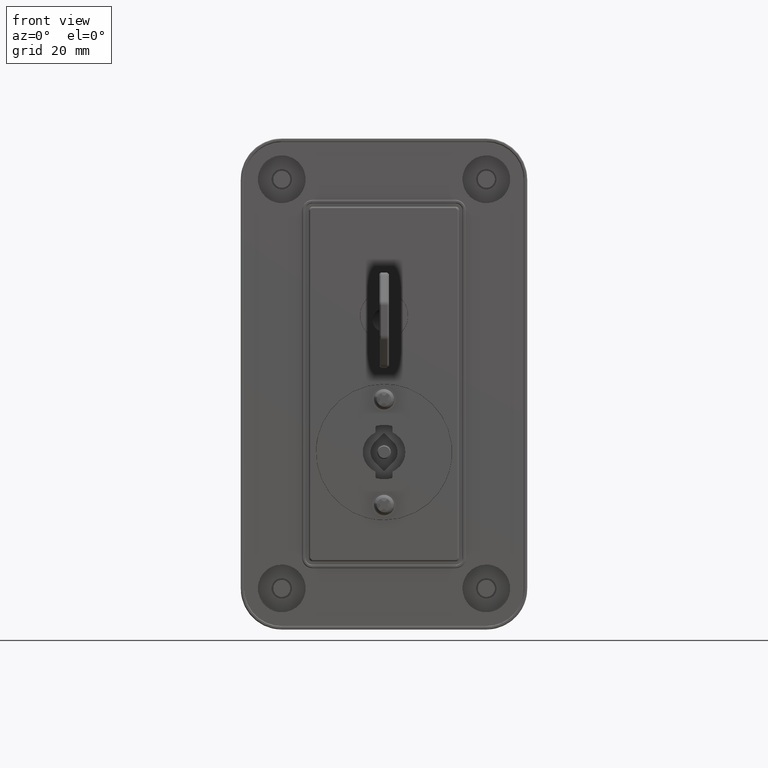
[diagram: clean part render]
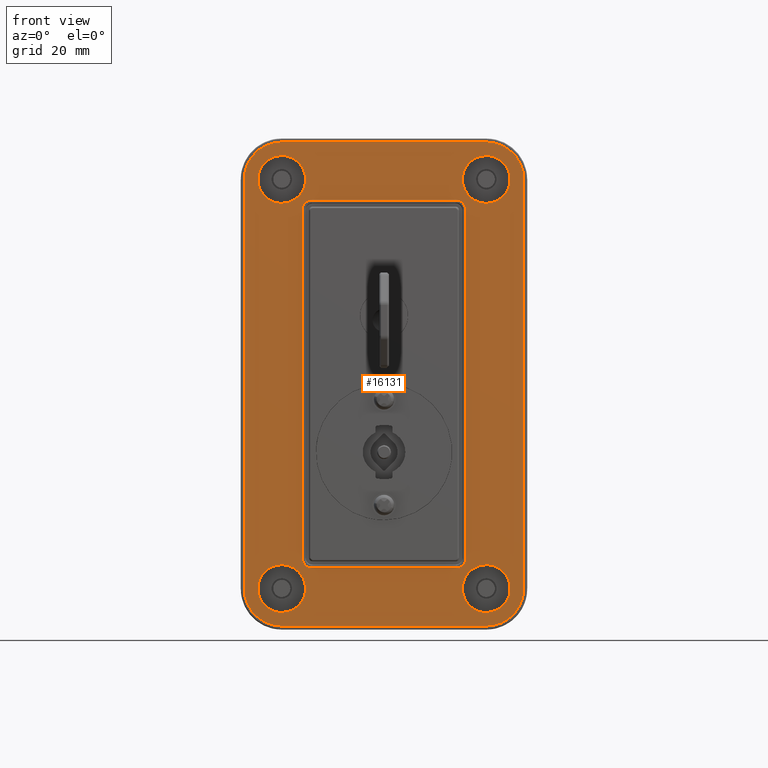
[diagram: same view with one face highlighted and labeled with its STEP entity id]
A machine part, front view. The second image highlights one B-rep face of the part: STEP entity #16131.
In plain terms, the highlighted face is a freeform B-spline surface patch.
Its self-contained STEP definition (entity closure, byte-faithful):
#10857=CARTESIAN_POINT('',(-28.149999996991848,23.048933315404579,79.173742690876992));
#10858=VERTEX_POINT('',#10857);
#10864=CARTESIAN_POINT('',(-28.149999996991848,29.999999999914301,86.999982333776700));
#10865=VERTEX_POINT('',#10864);
#10866=CARTESIAN_POINT('',(-28.149999996991848,23.048933315404582,79.173742690876992));
#10867=CARTESIAN_POINT('',(-28.149999996991848,22.999999999914298,79.585413495907716));
#10868=CARTESIAN_POINT('',(-28.149999996991848,22.999999999914301,79.999982333776700));
#10869=CARTESIAN_POINT('',(-28.149999996991852,22.999999999914298,86.999982333776700));
#10870=CARTESIAN_POINT('',(-28.149999996991848,29.999999999914301,86.999982333776700));
#10878=(BOUNDED_CURVE()B_SPLINE_CURVE(2,(#10866,#10867,#10868,#10869,#10870),.UNSPECIFIED.,.F.,.U.)B_SPLINE_CURVE_WITH_KNOTS((3,2,3),(0.229562473500939,0.250000000000000,0.500000000000000),.UNSPECIFIED.)CURVE()GEOMETRIC_REPRESENTATION_ITEM()RATIONAL_B_SPLINE_CURVE((0.956026754159064,0.976055948316420,1.0,0.707106781186547,1.0))REPRESENTATION_ITEM(''));
#10879=EDGE_CURVE('',#10858,#10865,#10878,.T.);
#10881=CARTESIAN_POINT('',(-28.149999996991848,36.986943588840191,80.427322110965108));
#10882=VERTEX_POINT('',#10881);
#10883=CARTESIAN_POINT('',(-28.149999996991848,29.999999999914301,86.999982333776700));
#10884=CARTESIAN_POINT('',(-28.149999996991845,36.584942467414905,86.999982333776700));
#10885=CARTESIAN_POINT('',(-28.149999996991856,36.986943588840191,80.427322110965108));
#10893=(BOUNDED_CURVE()B_SPLINE_CURVE(2,(#10883,#10884,#10885),.UNSPECIFIED.,.F.,.U.)B_SPLINE_CURVE_WITH_KNOTS((3,3),(0.500000000000000,0.739332962220018),.UNSPECIFIED.)CURVE()GEOMETRIC_REPRESENTATION_ITEM()RATIONAL_B_SPLINE_CURVE((1.0,0.719603993308882,0.976072041626158))REPRESENTATION_ITEM(''));
#10894=EDGE_CURVE('',#10865,#10882,#10893,.T.);
#10968=CARTESIAN_POINT('',(-28.149999996991848,29.999999999914301,72.999982333776686));
#10969=VERTEX_POINT('',#10968);
#10970=CARTESIAN_POINT('',(-28.149999996991852,36.986943588840191,80.427322110965108));
#10971=CARTESIAN_POINT('',(-28.149999996991856,36.999999999914301,80.213851677312476));
#10972=CARTESIAN_POINT('',(-28.149999996991848,36.999999999914301,79.999982333776700));
#10973=CARTESIAN_POINT('',(-28.149999996991852,36.999999999914309,72.999982333776686));
#10974=CARTESIAN_POINT('',(-28.149999996991848,29.999999999914301,72.999982333776686));
#10982=(BOUNDED_CURVE()B_SPLINE_CURVE(2,(#10970,#10971,#10972,#10973,#10974),.UNSPECIFIED.,.F.,.U.)B_SPLINE_CURVE_WITH_KNOTS((3,2,3),(0.739332962220019,0.750000000000000,1.0),.UNSPECIFIED.)CURVE()GEOMETRIC_REPRESENTATION_ITEM()RATIONAL_B_SPLINE_CURVE((0.976072041626159,0.987502787877666,1.0,0.707106781186547,1.0))REPRESENTATION_ITEM(''));
#10983=EDGE_CURVE('',#10882,#10969,#10982,.T.);
#10985=CARTESIAN_POINT('',(-28.149999996991848,29.999999999914301,72.999982333776686));
#10986=CARTESIAN_POINT('',(-28.149999996991852,23.782778318799494,72.999982333776700));
#10987=CARTESIAN_POINT('',(-28.149999996991848,23.048933315404582,79.173742690876992));
#10995=(BOUNDED_CURVE()B_SPLINE_CURVE(2,(#10985,#10986,#10987),.UNSPECIFIED.,.F.,.U.)B_SPLINE_CURVE_WITH_KNOTS((3,3),(0.0,0.229562473500939),.UNSPECIFIED.)CURVE()GEOMETRIC_REPRESENTATION_ITEM()RATIONAL_B_SPLINE_CURVE((1.0,0.731050832870128,0.956026754159064))REPRESENTATION_ITEM(''));
#10996=EDGE_CURVE('',#10969,#10858,#10995,.T.);
#11043=CARTESIAN_POINT('',(-28.149999996991848,-36.951066684332467,79.173742690894500));
#11044=VERTEX_POINT('',#11043);
#11050=CARTESIAN_POINT('',(-28.149999996991848,-29.999999999822752,86.999982333794208));
#11051=VERTEX_POINT('',#11050);
#11052=CARTESIAN_POINT('',(-28.149999996991856,-36.951066684332474,79.173742690894500));
#11053=CARTESIAN_POINT('',(-28.149999996991848,-36.999999999822755,79.585413495925238));
#11054=CARTESIAN_POINT('',(-28.149999996991848,-36.999999999822748,79.999982333794193));
#11055=CARTESIAN_POINT('',(-28.149999996991852,-36.999999999822748,86.999982333794222));
#11056=CARTESIAN_POINT('',(-28.149999996991848,-29.999999999822752,86.999982333794208));
#11064=(BOUNDED_CURVE()B_SPLINE_CURVE(2,(#11052,#11053,#11054,#11055,#11056),.UNSPECIFIED.,.F.,.U.)B_SPLINE_CURVE_WITH_KNOTS((3,2,3),(0.229562473500940,0.250000000000000,0.500000000000000),.UNSPECIFIED.)CURVE()GEOMETRIC_REPRESENTATION_ITEM()RATIONAL_B_SPLINE_CURVE((0.956026754159064,0.976055948316420,1.0,0.707106781186547,1.0))REPRESENTATION_ITEM(''));
#11065=EDGE_CURVE('',#11044,#11051,#11064,.T.);
#11067=CARTESIAN_POINT('',(-28.149999996991848,-23.013056410896869,80.427322110982601));
#11068=VERTEX_POINT('',#11067);
#11069=CARTESIAN_POINT('',(-28.149999996991848,-29.999999999822752,86.999982333794208));
#11070=CARTESIAN_POINT('',(-28.149999996991845,-23.415057532322141,86.999982333794222));
#11071=CARTESIAN_POINT('',(-28.149999996991856,-23.013056410896866,80.427322110982601));
#11079=(BOUNDED_CURVE()B_SPLINE_CURVE(2,(#11069,#11070,#11071),.UNSPECIFIED.,.F.,.U.)B_SPLINE_CURVE_WITH_KNOTS((3,3),(0.500000000000000,0.739332962220018),.UNSPECIFIED.)CURVE()GEOMETRIC_REPRESENTATION_ITEM()RATIONAL_B_SPLINE_CURVE((1.0,0.719603993308882,0.976072041626158))REPRESENTATION_ITEM(''));
#11080=EDGE_CURVE('',#11051,#11068,#11079,.T.);
#11154=CARTESIAN_POINT('',(-28.149999996991848,-29.999999999822752,72.999982333794193));
#11155=VERTEX_POINT('',#11154);
#11156=CARTESIAN_POINT('',(-28.149999996991852,-23.013056410896866,80.427322110982601));
#11157=CARTESIAN_POINT('',(-28.149999996991856,-22.999999999822752,80.213851677329956));
#11158=CARTESIAN_POINT('',(-28.149999996991848,-22.999999999822752,79.999982333794193));
#11159=CARTESIAN_POINT('',(-28.149999996991852,-22.999999999822755,72.999982333794193));
#11160=CARTESIAN_POINT('',(-28.149999996991848,-29.999999999822752,72.999982333794193));
#11168=(BOUNDED_CURVE()B_SPLINE_CURVE(2,(#11156,#11157,#11158,#11159,#11160),.UNSPECIFIED.,.F.,.U.)B_SPLINE_CURVE_WITH_KNOTS((3,2,3),(0.739332962220019,0.750000000000000,1.0),.UNSPECIFIED.)CURVE()GEOMETRIC_REPRESENTATION_ITEM()RATIONAL_B_SPLINE_CURVE((0.976072041626159,0.987502787877666,1.0,0.707106781186547,1.0))REPRESENTATION_ITEM(''));
#11169=EDGE_CURVE('',#11068,#11155,#11168,.T.);
#11171=CARTESIAN_POINT('',(-28.149999996991848,-29.999999999822752,72.999982333794193));
#11172=CARTESIAN_POINT('',(-28.149999996991845,-36.217221680937577,72.999982333794193));
#11173=CARTESIAN_POINT('',(-28.149999996991852,-36.951066684332474,79.173742690894500));
#11181=(BOUNDED_CURVE()B_SPLINE_CURVE(2,(#11171,#11172,#11173),.UNSPECIFIED.,.F.,.U.)B_SPLINE_CURVE_WITH_KNOTS((3,3),(0.0,0.229562473500940),.UNSPECIFIED.)CURVE()GEOMETRIC_REPRESENTATION_ITEM()RATIONAL_B_SPLINE_CURVE((1.0,0.731050832870127,0.956026754159065))REPRESENTATION_ITEM(''));
#11182=EDGE_CURVE('',#11155,#11044,#11181,.T.);
#11229=CARTESIAN_POINT('',(-28.149999996991848,-36.951066684496872,-40.826257309223067));
#11230=VERTEX_POINT('',#11229);
#11236=CARTESIAN_POINT('',(-28.149999996991848,-29.999999999987150,-33.000017666323352));
#11237=VERTEX_POINT('',#11236);
#11238=CARTESIAN_POINT('',(-28.149999996991852,-36.951066684496865,-40.826257309223067));
#11239=CARTESIAN_POINT('',(-28.149999996991852,-36.999999999987153,-40.414586504192322));
#11240=CARTESIAN_POINT('',(-28.149999996991848,-36.999999999987153,-40.000017666323352));
#11241=CARTESIAN_POINT('',(-28.149999996991852,-36.999999999987146,-33.000017666323359));
#11242=CARTESIAN_POINT('',(-28.149999996991848,-29.999999999987150,-33.000017666323352));
#11250=(BOUNDED_CURVE()B_SPLINE_CURVE(2,(#11238,#11239,#11240,#11241,#11242),.UNSPECIFIED.,.F.,.U.)B_SPLINE_CURVE_WITH_KNOTS((3,2,3),(0.229562473500940,0.250000000000000,0.500000000000000),.UNSPECIFIED.)CURVE()GEOMETRIC_REPRESENTATION_ITEM()RATIONAL_B_SPLINE_CURVE((0.956026754159064,0.976055948316420,1.0,0.707106781186547,1.0))REPRESENTATION_ITEM(''));
#11251=EDGE_CURVE('',#11230,#11237,#11250,.T.);
#11253=CARTESIAN_POINT('',(-28.149999996991848,-23.013056411061260,-39.572677889134951));
#11254=VERTEX_POINT('',#11253);
#11255=CARTESIAN_POINT('',(-28.149999996991848,-29.999999999987150,-33.000017666323352));
#11256=CARTESIAN_POINT('',(-28.149999996991845,-23.415057532486550,-33.000017666323352));
#11257=CARTESIAN_POINT('',(-28.149999996991856,-23.013056411061264,-39.572677889134951));
#11265=(BOUNDED_CURVE()B_SPLINE_CURVE(2,(#11255,#11256,#11257),.UNSPECIFIED.,.F.,.U.)B_SPLINE_CURVE_WITH_KNOTS((3,3),(0.500000000000000,0.739332962220018),.UNSPECIFIED.)CURVE()GEOMETRIC_REPRESENTATION_ITEM()RATIONAL_B_SPLINE_CURVE((1.0,0.719603993308882,0.976072041626158))REPRESENTATION_ITEM(''));
#11266=EDGE_CURVE('',#11237,#11254,#11265,.T.);
#11340=CARTESIAN_POINT('',(-28.149999996991848,-29.999999999987150,-47.000017666323352));
#11341=VERTEX_POINT('',#11340);
#11342=CARTESIAN_POINT('',(-28.149999996991845,-23.013056411061264,-39.572677889134951));
#11343=CARTESIAN_POINT('',(-28.149999996991852,-22.999999999987153,-39.786148322787575));
#11344=CARTESIAN_POINT('',(-28.149999996991848,-22.999999999987150,-40.000017666323352));
#11345=CARTESIAN_POINT('',(-28.149999996991852,-22.999999999987153,-47.000017666323352));
#11346=CARTESIAN_POINT('',(-28.149999996991848,-29.999999999987150,-47.000017666323352));
#11354=(BOUNDED_CURVE()B_SPLINE_CURVE(2,(#11342,#11343,#11344,#11345,#11346),.UNSPECIFIED.,.F.,.U.)B_SPLINE_CURVE_WITH_KNOTS((3,2,3),(0.739332962220019,0.750000000000000,1.0),.UNSPECIFIED.)CURVE()GEOMETRIC_REPRESENTATION_ITEM()RATIONAL_B_SPLINE_CURVE((0.976072041626160,0.987502787877666,1.0,0.707106781186547,1.0))REPRESENTATION_ITEM(''));
#11355=EDGE_CURVE('',#11254,#11341,#11354,.T.);
#11357=CARTESIAN_POINT('',(-28.149999996991848,-29.999999999987150,-47.000017666323352));
#11358=CARTESIAN_POINT('',(-28.149999996991845,-36.217221681101975,-47.000017666323359));
#11359=CARTESIAN_POINT('',(-28.149999996991856,-36.951066684496865,-40.826257309223074));
#11367=(BOUNDED_CURVE()B_SPLINE_CURVE(2,(#11357,#11358,#11359),.UNSPECIFIED.,.F.,.U.)B_SPLINE_CURVE_WITH_KNOTS((3,3),(0.0,0.229562473500940),.UNSPECIFIED.)CURVE()GEOMETRIC_REPRESENTATION_ITEM()RATIONAL_B_SPLINE_CURVE((1.0,0.731050832870128,0.956026754159064))REPRESENTATION_ITEM(''));
#11368=EDGE_CURVE('',#11341,#11230,#11367,.T.);
#11415=CARTESIAN_POINT('',(-28.149999996991848,23.048933315498431,-40.826257309240468));
#11416=VERTEX_POINT('',#11415);
#11422=CARTESIAN_POINT('',(-28.149999996991848,30.000000000008150,-33.000017666340753));
#11423=VERTEX_POINT('',#11422);
#11424=CARTESIAN_POINT('',(-28.149999996991856,23.048933315498438,-40.826257309240468));
#11425=CARTESIAN_POINT('',(-28.149999996991845,23.000000000008150,-40.414586504209723));
#11426=CARTESIAN_POINT('',(-28.149999996991848,23.000000000008150,-40.000017666340753));
#11427=CARTESIAN_POINT('',(-28.149999996991852,23.000000000008157,-33.000017666340753));
#11428=CARTESIAN_POINT('',(-28.149999996991848,30.000000000008150,-33.000017666340753));
#11436=(BOUNDED_CURVE()B_SPLINE_CURVE(2,(#11424,#11425,#11426,#11427,#11428),.UNSPECIFIED.,.F.,.U.)B_SPLINE_CURVE_WITH_KNOTS((3,2,3),(0.229562473500940,0.250000000000000,0.500000000000000),.UNSPECIFIED.)CURVE()GEOMETRIC_REPRESENTATION_ITEM()RATIONAL_B_SPLINE_CURVE((0.956026754159064,0.976055948316420,1.0,0.707106781186547,1.0))REPRESENTATION_ITEM(''));
#11437=EDGE_CURVE('',#11416,#11423,#11436,.T.);
#11439=CARTESIAN_POINT('',(-28.149999996991848,36.986943588934039,-39.572677889152359));
#11440=VERTEX_POINT('',#11439);
#11441=CARTESIAN_POINT('',(-28.149999996991848,30.000000000008150,-33.000017666340753));
#11442=CARTESIAN_POINT('',(-28.149999996991845,36.584942467508746,-33.000017666340753));
#11443=CARTESIAN_POINT('',(-28.149999996991856,36.986943588934039,-39.572677889152367));
#11451=(BOUNDED_CURVE()B_SPLINE_CURVE(2,(#11441,#11442,#11443),.UNSPECIFIED.,.F.,.U.)B_SPLINE_CURVE_WITH_KNOTS((3,3),(0.500000000000000,0.739332962220018),.UNSPECIFIED.)CURVE()GEOMETRIC_REPRESENTATION_ITEM()RATIONAL_B_SPLINE_CURVE((1.0,0.719603993308882,0.976072041626158))REPRESENTATION_ITEM(''));
#11452=EDGE_CURVE('',#11423,#11440,#11451,.T.);
#11526=CARTESIAN_POINT('',(-28.149999996991848,30.000000000008150,-47.000017666340753));
#11527=VERTEX_POINT('',#11526);
#11528=CARTESIAN_POINT('',(-28.149999996991852,36.986943588934039,-39.572677889152359));
#11529=CARTESIAN_POINT('',(-28.149999996991848,37.000000000008157,-39.786148322804991));
#11530=CARTESIAN_POINT('',(-28.149999996991848,37.000000000008150,-40.000017666340753));
#11531=CARTESIAN_POINT('',(-28.149999996991852,37.000000000008150,-47.000017666340753));
#11532=CARTESIAN_POINT('',(-28.149999996991848,30.000000000008150,-47.000017666340753));
#11540=(BOUNDED_CURVE()B_SPLINE_CURVE(2,(#11528,#11529,#11530,#11531,#11532),.UNSPECIFIED.,.F.,.U.)B_SPLINE_CURVE_WITH_KNOTS((3,2,3),(0.739332962220019,0.750000000000000,1.0),.UNSPECIFIED.)CURVE()GEOMETRIC_REPRESENTATION_ITEM()RATIONAL_B_SPLINE_CURVE((0.976072041626160,0.987502787877667,1.0,0.707106781186547,1.0))REPRESENTATION_ITEM(''));
#11541=EDGE_CURVE('',#11440,#11527,#11540,.T.);
#11543=CARTESIAN_POINT('',(-28.149999996991848,30.000000000008150,-47.000017666340753));
#11544=CARTESIAN_POINT('',(-28.149999996991852,23.782778318893346,-47.000017666340753));
#11545=CARTESIAN_POINT('',(-28.149999996991848,23.048933315498431,-40.826257309240468));
#11553=(BOUNDED_CURVE()B_SPLINE_CURVE(2,(#11543,#11544,#11545),.UNSPECIFIED.,.F.,.U.)B_SPLINE_CURVE_WITH_KNOTS((3,3),(0.0,0.229562473500939),.UNSPECIFIED.)CURVE()GEOMETRIC_REPRESENTATION_ITEM()RATIONAL_B_SPLINE_CURVE((1.0,0.731050832870128,0.956026754159064))REPRESENTATION_ITEM(''));
#11554=EDGE_CURVE('',#11527,#11416,#11553,.T.);
#12446=CARTESIAN_POINT('',(-28.149999996991848,-40.999999999991850,-40.000017666340753));
#12447=VERTEX_POINT('',#12446);
#12470=CARTESIAN_POINT('',(-28.149999996991902,-40.999999999991850,79.999982333776700));
#12471=VERTEX_POINT('',#12470);
#12485=CARTESIAN_POINT('',(-28.149999996991848,-40.999999999991850,-40.000017666340753));
#12486=CARTESIAN_POINT('',(-28.149999996991902,-40.999999999991850,79.999982333776700));
#12487=QUASI_UNIFORM_CURVE('',1,(#12485,#12486),.UNSPECIFIED.,.F.,.U.);
#12488=EDGE_CURVE('',#12447,#12471,#12487,.T.);
#12512=CARTESIAN_POINT('',(-28.149999996991848,-29.999999999991751,90.999982333659105));
#12513=VERTEX_POINT('',#12512);
#12527=CARTESIAN_POINT('',(-28.149999996991848,-40.999999999991751,79.999982333776700));
#12528=CARTESIAN_POINT('',(-28.149999996991852,-40.999999999874156,90.999982333659105));
#12529=CARTESIAN_POINT('',(-28.149999996991848,-29.999999999991751,90.999982333659091));
#12537=(BOUNDED_CURVE()B_SPLINE_CURVE(2,(#12527,#12528,#12529),.UNSPECIFIED.,.F.,.U.)CURVE()GEOMETRIC_REPRESENTATION_ITEM()QUASI_UNIFORM_CURVE()RATIONAL_B_SPLINE_CURVE((1.0,0.707106781190327,1.0))REPRESENTATION_ITEM(''));
#12538=EDGE_CURVE('',#12471,#12513,#12537,.T.);
#12574=CARTESIAN_POINT('',(-28.149999996991902,-29.999999999987150,-51.000017666340703));
#12575=VERTEX_POINT('',#12574);
#12607=CARTESIAN_POINT('',(-28.149999996991848,-29.999999999987150,-51.000017666340753));
#12608=CARTESIAN_POINT('',(-28.149999996991852,-34.556349186092554,-51.000017666342657));
#12609=CARTESIAN_POINT('',(-28.149999996991848,-37.778174593042152,-47.778192259394402));
#12610=CARTESIAN_POINT('',(-28.149999996991852,-40.999999999991751,-44.556366852446139));
#12611=CARTESIAN_POINT('',(-28.149999996991848,-40.999999999991751,-40.000017666340753));
#12619=(BOUNDED_CURVE()B_SPLINE_CURVE(2,(#12607,#12608,#12609,#12610,#12611),.UNSPECIFIED.,.F.,.U.)B_SPLINE_CURVE_WITH_KNOTS((3,2,3),(0.0,0.500000000000000,1.0),.UNSPECIFIED.)CURVE()GEOMETRIC_REPRESENTATION_ITEM()RATIONAL_B_SPLINE_CURVE((1.0,0.923879532511247,1.0,0.923879532511247,1.0))REPRESENTATION_ITEM(''));
#12620=EDGE_CURVE('',#12575,#12447,#12619,.T.);
#12641=CARTESIAN_POINT('',(-28.149999996991902,30.000000000008200,90.999982333659105));
#12642=VERTEX_POINT('',#12641);
#12656=CARTESIAN_POINT('',(-28.149999996991848,-29.999999999991751,90.999982333659105));
#12657=CARTESIAN_POINT('',(-28.149999996991902,30.000000000008200,90.999982333659105));
#12658=QUASI_UNIFORM_CURVE('',1,(#12656,#12657),.UNSPECIFIED.,.F.,.U.);
#12659=EDGE_CURVE('',#12513,#12642,#12658,.T.);
#12684=CARTESIAN_POINT('',(-28.149999996991848,30.000000000008150,-51.000017666340703));
#12685=VERTEX_POINT('',#12684);
#12707=CARTESIAN_POINT('',(-28.149999996991848,30.000000000008150,-51.000017666340703));
#12708=CARTESIAN_POINT('',(-28.149999996991902,-29.999999999987150,-51.000017666340703));
#12709=QUASI_UNIFORM_CURVE('',1,(#12707,#12708),.UNSPECIFIED.,.F.,.U.);
#12710=EDGE_CURVE('',#12685,#12575,#12709,.T.);
#12734=CARTESIAN_POINT('',(-28.149999996991848,41.000000000008207,79.999982333659091));
#12735=VERTEX_POINT('',#12734);
#12751=CARTESIAN_POINT('',(-28.149999996991848,30.000000000008200,90.999982333659091));
#12752=CARTESIAN_POINT('',(-28.149999996991848,41.000000000008200,90.999982333659077));
#12753=CARTESIAN_POINT('',(-28.149999996991848,41.000000000008200,79.999982333659091));
#12761=(BOUNDED_CURVE()B_SPLINE_CURVE(2,(#12751,#12752,#12753),.UNSPECIFIED.,.F.,.U.)CURVE()GEOMETRIC_REPRESENTATION_ITEM()QUASI_UNIFORM_CURVE()RATIONAL_B_SPLINE_CURVE((1.0,0.707106781186548,1.0))REPRESENTATION_ITEM(''));
#12762=EDGE_CURVE('',#12642,#12735,#12761,.T.);
#12798=CARTESIAN_POINT('',(-28.149999996991902,41.000000000008157,-40.000017666340753));
#12799=VERTEX_POINT('',#12798);
#12829=CARTESIAN_POINT('',(-28.149999996991848,41.000000000008150,-40.000017666340753));
#12830=CARTESIAN_POINT('',(-28.149999996991848,41.000000000008143,-51.000017666340746));
#12831=CARTESIAN_POINT('',(-28.149999996991848,30.000000000008150,-51.000017666340753));
#12839=(BOUNDED_CURVE()B_SPLINE_CURVE(2,(#12829,#12830,#12831),.UNSPECIFIED.,.F.,.U.)CURVE()GEOMETRIC_REPRESENTATION_ITEM()QUASI_UNIFORM_CURVE()RATIONAL_B_SPLINE_CURVE((1.0,0.707106781186548,1.0))REPRESENTATION_ITEM(''));
#12840=EDGE_CURVE('',#12799,#12685,#12839,.T.);
#12866=CARTESIAN_POINT('',(-28.149999996991848,41.000000000008207,79.999982333659091));
#12867=CARTESIAN_POINT('',(-28.149999996991902,41.000000000008157,-40.000017666340753));
#12868=QUASI_UNIFORM_CURVE('',1,(#12866,#12867),.UNSPECIFIED.,.F.,.U.);
#12869=EDGE_CURVE('',#12735,#12799,#12868,.T.);
#13337=CARTESIAN_POINT('',(-28.149999996991848,21.000000000043102,73.999982333711003));
#13338=VERTEX_POINT('',#13337);
#13352=CARTESIAN_POINT('',(-28.149999996991848,24.000000000043102,70.999982333711003));
#13353=VERTEX_POINT('',#13352);
#13354=CARTESIAN_POINT('',(-28.149999996991848,21.000000000043102,73.999982333711003));
#13355=CARTESIAN_POINT('',(-28.149999996991848,24.000000000043105,73.999982333711017));
#13356=CARTESIAN_POINT('',(-28.149999996991848,24.000000000043102,70.999982333711003));
#13364=(BOUNDED_CURVE()B_SPLINE_CURVE(2,(#13354,#13355,#13356),.UNSPECIFIED.,.F.,.U.)CURVE()GEOMETRIC_REPRESENTATION_ITEM()QUASI_UNIFORM_CURVE()RATIONAL_B_SPLINE_CURVE((1.0,0.707106781186548,1.0))REPRESENTATION_ITEM(''));
#13365=EDGE_CURVE('',#13338,#13353,#13364,.T.);
#13412=CARTESIAN_POINT('',(-28.149999996991848,24.000000000013149,-31.000017666289100));
#13413=VERTEX_POINT('',#13412);
#13435=CARTESIAN_POINT('',(-28.149999996991848,24.000000000013149,-31.000017666289100));
#13436=CARTESIAN_POINT('',(-28.149999996991848,24.000000000043102,70.999982333711003));
#13437=QUASI_UNIFORM_CURVE('',1,(#13435,#13436),.UNSPECIFIED.,.F.,.U.);
#13438=EDGE_CURVE('',#13413,#13353,#13437,.T.);
#13459=CARTESIAN_POINT('',(-28.149999996991848,-20.999999999959300,73.999982333677892));
#13460=VERTEX_POINT('',#13459);
#13474=CARTESIAN_POINT('',(-28.149999996991848,21.000000000043102,73.999982333711003));
#13475=CARTESIAN_POINT('',(-28.149999996991848,-20.999999999959300,73.999982333677892));
#13476=QUASI_UNIFORM_CURVE('',1,(#13474,#13475),.UNSPECIFIED.,.F.,.U.);
#13477=EDGE_CURVE('',#13338,#13460,#13476,.T.);
#13505=CARTESIAN_POINT('',(-28.149999996991848,21.000000000015650,-34.000017666289096));
#13506=VERTEX_POINT('',#13505);
#13536=CARTESIAN_POINT('',(-28.149999996991848,24.000000000013149,-31.000017666289100));
#13537=CARTESIAN_POINT('',(-28.149999996991852,24.000000000013145,-34.000017666286595));
#13538=CARTESIAN_POINT('',(-28.149999996991848,21.000000000015650,-34.000017666289096));
#13546=(BOUNDED_CURVE()B_SPLINE_CURVE(2,(#13536,#13537,#13538),.UNSPECIFIED.,.F.,.U.)CURVE()GEOMETRIC_REPRESENTATION_ITEM()QUASI_UNIFORM_CURVE()RATIONAL_B_SPLINE_CURVE((1.0,0.707106781186842,1.0))REPRESENTATION_ITEM(''));
#13547=EDGE_CURVE('',#13413,#13506,#13546,.T.);
#13571=CARTESIAN_POINT('',(-28.149999996991848,-23.999999999956952,70.999982333677892));
#13572=VERTEX_POINT('',#13571);
#13588=CARTESIAN_POINT('',(-28.149999996991848,-23.999999999956952,70.999982333677892));
#13589=CARTESIAN_POINT('',(-28.149999996991848,-23.999999999956948,73.999982333677892));
#13590=CARTESIAN_POINT('',(-28.149999996991848,-20.999999999959300,73.999982333677892));
#13598=(BOUNDED_CURVE()B_SPLINE_CURVE(2,(#13588,#13589,#13590),.UNSPECIFIED.,.F.,.U.)CURVE()GEOMETRIC_REPRESENTATION_ITEM()QUASI_UNIFORM_CURVE()RATIONAL_B_SPLINE_CURVE((1.0,0.707106781186548,1.0))REPRESENTATION_ITEM(''));
#13599=EDGE_CURVE('',#13572,#13460,#13598,.T.);
#13632=CARTESIAN_POINT('',(-28.149999996991848,-20.999999999986802,-34.000017666322151));
#13633=VERTEX_POINT('',#13632);
#13655=CARTESIAN_POINT('',(-28.149999996991848,-20.999999999986802,-34.000017666322151));
#13656=CARTESIAN_POINT('',(-28.149999996991848,21.000000000015650,-34.000017666289096));
#13657=QUASI_UNIFORM_CURVE('',1,(#13655,#13656),.UNSPECIFIED.,.F.,.U.);
#13658=EDGE_CURVE('',#13633,#13506,#13657,.T.);
#13679=CARTESIAN_POINT('',(-28.149999996991848,-23.999999999986851,-31.000017666321099));
#13680=VERTEX_POINT('',#13679);
#13694=CARTESIAN_POINT('',(-28.149999996991848,-23.999999999956952,70.999982333677892));
#13695=CARTESIAN_POINT('',(-28.149999996991848,-23.999999999986851,-31.000017666321099));
#13696=QUASI_UNIFORM_CURVE('',1,(#13694,#13695),.UNSPECIFIED.,.F.,.U.);
#13697=EDGE_CURVE('',#13572,#13680,#13696,.T.);
#13732=CARTESIAN_POINT('',(-28.149999996991848,-20.999999999986802,-34.000017666322151));
#13733=CARTESIAN_POINT('',(-28.149999996991856,-22.242640687106395,-34.000017666322158));
#13734=CARTESIAN_POINT('',(-28.149999996991848,-23.121320343546810,-33.121338009881420));
#13735=CARTESIAN_POINT('',(-28.149999996991856,-23.999999999987224,-32.242658353440696));
#13736=CARTESIAN_POINT('',(-28.149999996991848,-23.999999999986802,-31.000017666321099));
#13744=(BOUNDED_CURVE()B_SPLINE_CURVE(2,(#13732,#13733,#13734,#13735,#13736),.UNSPECIFIED.,.F.,.U.)B_SPLINE_CURVE_WITH_KNOTS((3,2,3),(0.0,0.500000000000000,1.0),.UNSPECIFIED.)CURVE()GEOMETRIC_REPRESENTATION_ITEM()RATIONAL_B_SPLINE_CURVE((1.0,0.923879532511253,1.0,0.923879532511253,1.0))REPRESENTATION_ITEM(''));
#13745=EDGE_CURVE('',#13633,#13680,#13744,.T.);
#16082=CARTESIAN_POINT('',(-28.149999996991902,45.095899841076303,98.092884724424323));
#16083=CARTESIAN_POINT('',(-28.149999996991902,-45.095902040471351,98.092884724424351));
#16084=CARTESIAN_POINT('',(-28.149999996991902,45.095899841076303,-58.092921326684873));
#16085=CARTESIAN_POINT('',(-28.149999996991902,-45.095902040471351,-58.092921326684873));
#16086=B_SPLINE_SURFACE_WITH_KNOTS('',1,1,((#16082,#16084),(#16083,#16085)),.UNSPECIFIED.,.F.,.F.,.U.,(2,2),(2,2),(0.0,90.191801881547647),(0.0,156.185806051109210),.UNSPECIFIED.);
#16087=ORIENTED_EDGE('',*,*,#12620,.T.);
#16088=ORIENTED_EDGE('',*,*,#12488,.T.);
#16089=ORIENTED_EDGE('',*,*,#12538,.T.);
#16090=ORIENTED_EDGE('',*,*,#12659,.T.);
#16091=ORIENTED_EDGE('',*,*,#12762,.T.);
#16092=ORIENTED_EDGE('',*,*,#12869,.T.);
#16093=ORIENTED_EDGE('',*,*,#12840,.T.);
#16094=ORIENTED_EDGE('',*,*,#12710,.T.);
#16095=EDGE_LOOP('',(#16087,#16088,#16089,#16090,#16091,#16092,#16093,#16094));
#16096=FACE_OUTER_BOUND('',#16095,.T.);
#16097=ORIENTED_EDGE('',*,*,#13438,.T.);
#16098=ORIENTED_EDGE('',*,*,#13365,.F.);
#16099=ORIENTED_EDGE('',*,*,#13477,.T.);
#16100=ORIENTED_EDGE('',*,*,#13599,.F.);
#16101=ORIENTED_EDGE('',*,*,#13697,.T.);
#16102=ORIENTED_EDGE('',*,*,#13745,.F.);
#16103=ORIENTED_EDGE('',*,*,#13658,.T.);
#16104=ORIENTED_EDGE('',*,*,#13547,.F.);
#16105=EDGE_LOOP('',(#16097,#16098,#16099,#16100,#16101,#16102,#16103,#16104));
#16106=FACE_BOUND('',#16105,.T.);
#16107=ORIENTED_EDGE('',*,*,#11452,.F.);
#16108=ORIENTED_EDGE('',*,*,#11437,.F.);
#16109=ORIENTED_EDGE('',*,*,#11554,.F.);
#16110=ORIENTED_EDGE('',*,*,#11541,.F.);
#16111=EDGE_LOOP('',(#16107,#16108,#16109,#16110));
#16112=FACE_BOUND('',#16111,.T.);
#16113=ORIENTED_EDGE('',*,*,#11266,.F.);
#16114=ORIENTED_EDGE('',*,*,#11251,.F.);
#16115=ORIENTED_EDGE('',*,*,#11368,.F.);
#16116=ORIENTED_EDGE('',*,*,#11355,.F.);
#16117=EDGE_LOOP('',(#16113,#16114,#16115,#16116));
#16118=FACE_BOUND('',#16117,.T.);
#16119=ORIENTED_EDGE('',*,*,#11080,.F.);
#16120=ORIENTED_EDGE('',*,*,#11065,.F.);
#16121=ORIENTED_EDGE('',*,*,#11182,.F.);
#16122=ORIENTED_EDGE('',*,*,#11169,.F.);
#16123=EDGE_LOOP('',(#16119,#16120,#16121,#16122));
#16124=FACE_BOUND('',#16123,.T.);
#16125=ORIENTED_EDGE('',*,*,#10894,.F.);
#16126=ORIENTED_EDGE('',*,*,#10879,.F.);
#16127=ORIENTED_EDGE('',*,*,#10996,.F.);
#16128=ORIENTED_EDGE('',*,*,#10983,.F.);
#16129=EDGE_LOOP('',(#16125,#16126,#16127,#16128));
#16130=FACE_BOUND('',#16129,.T.);
#16131=ADVANCED_FACE('',(#16096,#16106,#16112,#16118,#16124,#16130),#16086,.F.);